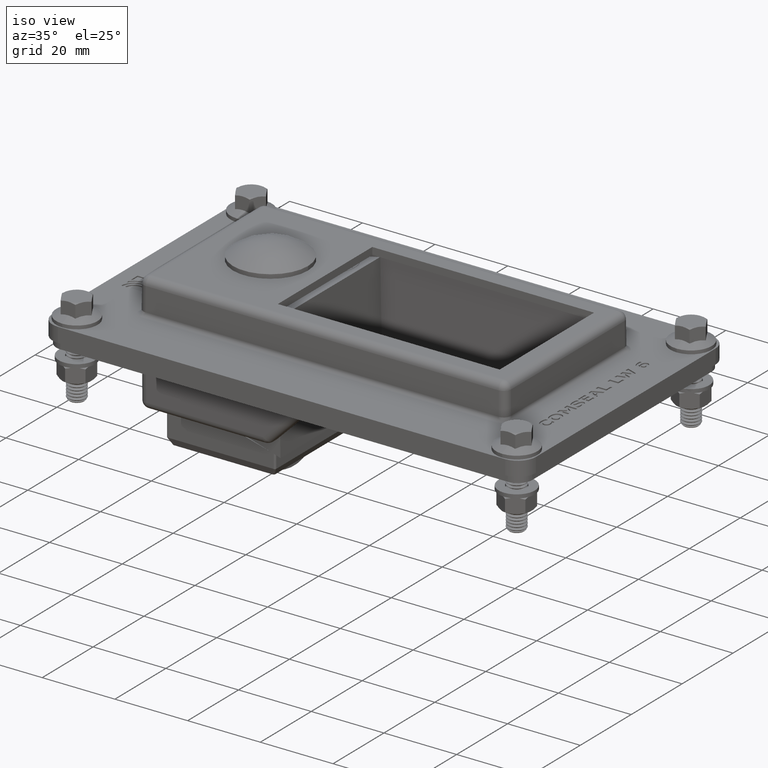
[diagram: clean part render]
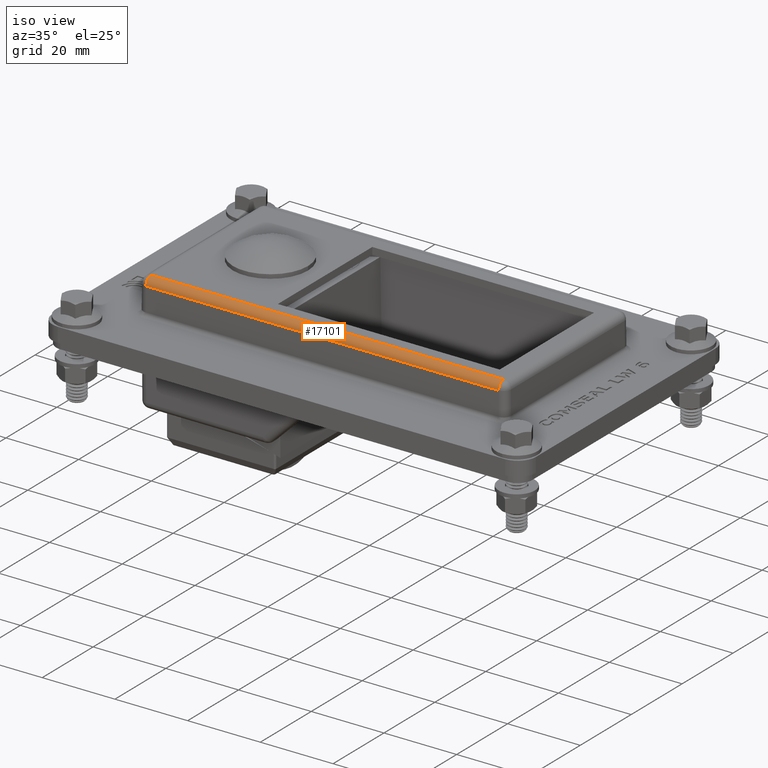
[diagram: same view with one face highlighted and labeled with its STEP entity id]
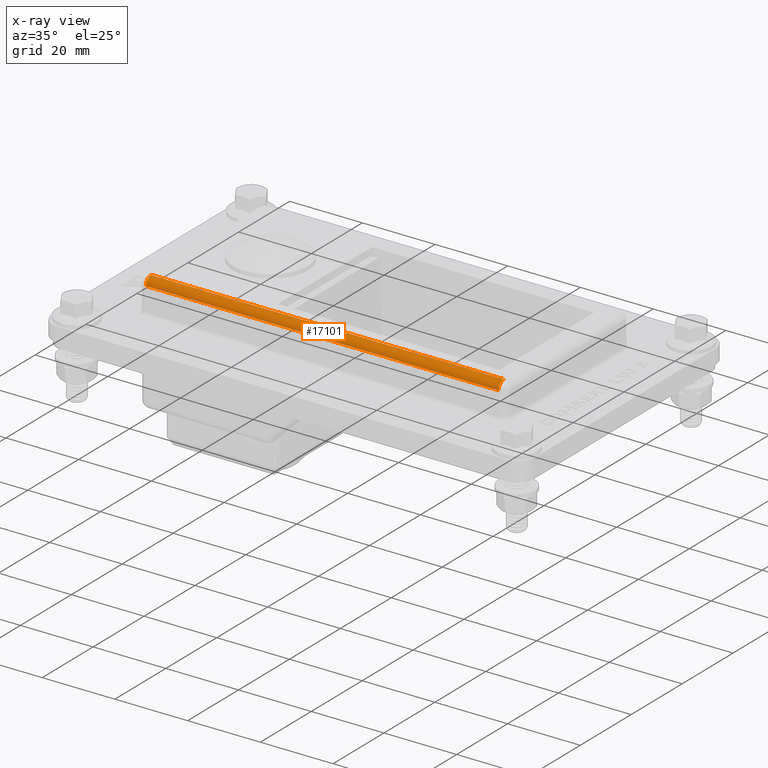
[diagram: x-ray of the same camera — body ghosted, the highlighted face saturated]
A machine part, iso view. The second image highlights one B-rep face of the part: STEP entity #17101.
The next image is the same camera in x-ray: the body ghosted, the highlighted face saturated — about 0% of this face is hidden behind the body in this view.
In plain terms, the highlighted cylindrical surface (edge-blend (fillet) strip) has radius 2 mm, axis along (-1, 0, 0).
Its self-contained STEP definition (entity closure, byte-faithful):
#17060=CARTESIAN_POINT('',(15.250000000000011,-22.26737757881002,20.999999999999996));
#17061=DIRECTION('',(-1.0,1.611615E-034,1.846728E-032));
#17062=DIRECTION('',(0.0,-0.70401472445597,0.710185375623284));
#17063=AXIS2_PLACEMENT_3D('',#17060,#17061,#17062);
#17064=CYLINDRICAL_SURFACE('',#17063,2.0);
#17065=CARTESIAN_POINT('',(38.517377578810063,-24.267301424938363,21.017453070996744));
#17066=VERTEX_POINT('',#17065);
#17067=CARTESIAN_POINT('',(38.517377578810056,-22.26737757881002,23.0));
#17068=VERTEX_POINT('',#17067);
#17069=CARTESIAN_POINT('',(38.51737757881007,-22.26737757881002,20.999999999999996));
#17070=DIRECTION('',(-1.0,2.220362E-015,-1.937680E-017));
#17071=DIRECTION('',(-2.220446E-015,-0.999961923064171,0.008726535498373));
#17072=AXIS2_PLACEMENT_3D('',#17069,#17070,#17071);
#17073=CIRCLE('',#17072,2.000000000000001);
#17074=EDGE_CURVE('',#17066,#17068,#17073,.T.);
#17075=ORIENTED_EDGE('',*,*,#17074,.T.);
#17076=CARTESIAN_POINT('',(-58.517377578810056,-22.26737757881002,23.0));
#17077=VERTEX_POINT('',#17076);
#17078=CARTESIAN_POINT('',(38.517377578810056,-22.26737757881002,23.0));
#17079=DIRECTION('',(-1.0,0.0,0.0));
#17080=VECTOR('',#17079,97.034755157620111);
#17081=LINE('',#17078,#17080);
#17082=EDGE_CURVE('',#17068,#17077,#17081,.T.);
#17083=ORIENTED_EDGE('',*,*,#17082,.T.);
#17084=CARTESIAN_POINT('',(-58.517377578810056,-24.267301424938363,21.017453070996744));
#17085=VERTEX_POINT('',#17084);
#17086=CARTESIAN_POINT('',(-58.517377578810056,-22.26737757881002,20.999999999999996));
#17087=DIRECTION('',(1.0,0.0,0.0));
#17088=DIRECTION('',(0.0,0.0,1.0));
#17089=AXIS2_PLACEMENT_3D('',#17086,#17087,#17088);
#17090=CIRCLE('',#17089,2.000000000000002);
#17091=EDGE_CURVE('',#17077,#17085,#17090,.T.);
#17092=ORIENTED_EDGE('',*,*,#17091,.T.);
#17093=CARTESIAN_POINT('',(-58.517377578810056,-24.267301424938363,21.017453070996744));
#17094=DIRECTION('',(1.0,0.0,0.0));
#17095=VECTOR('',#17094,97.034755157620125);
#17096=LINE('',#17093,#17095);
#17097=EDGE_CURVE('',#17085,#17066,#17096,.T.);
#17098=ORIENTED_EDGE('',*,*,#17097,.T.);
#17099=EDGE_LOOP('',(#17075,#17083,#17092,#17098));
#17100=FACE_OUTER_BOUND('',#17099,.T.);
#17101=ADVANCED_FACE('',(#17100),#17064,.T.);